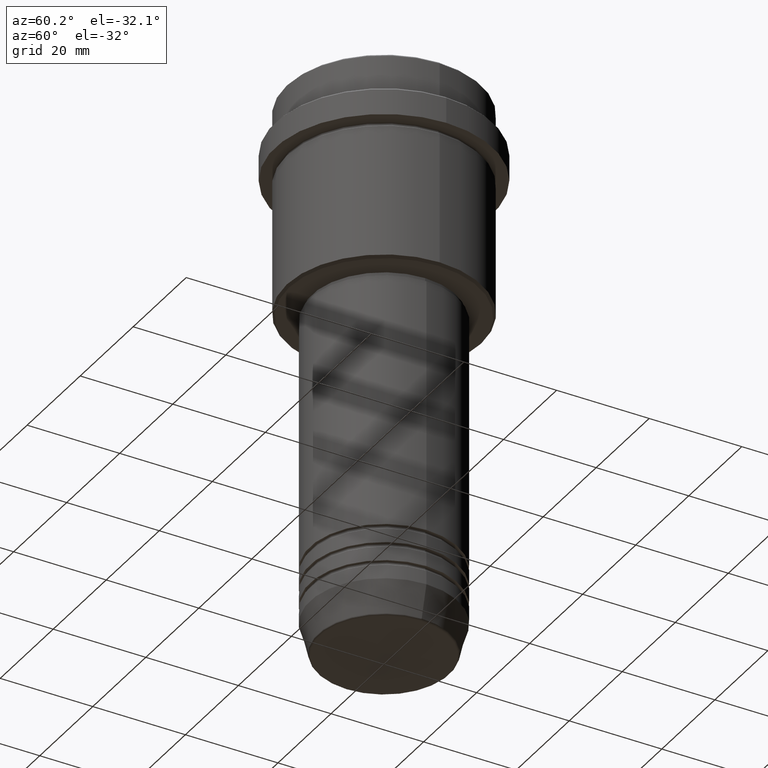
[diagram: clean part render]
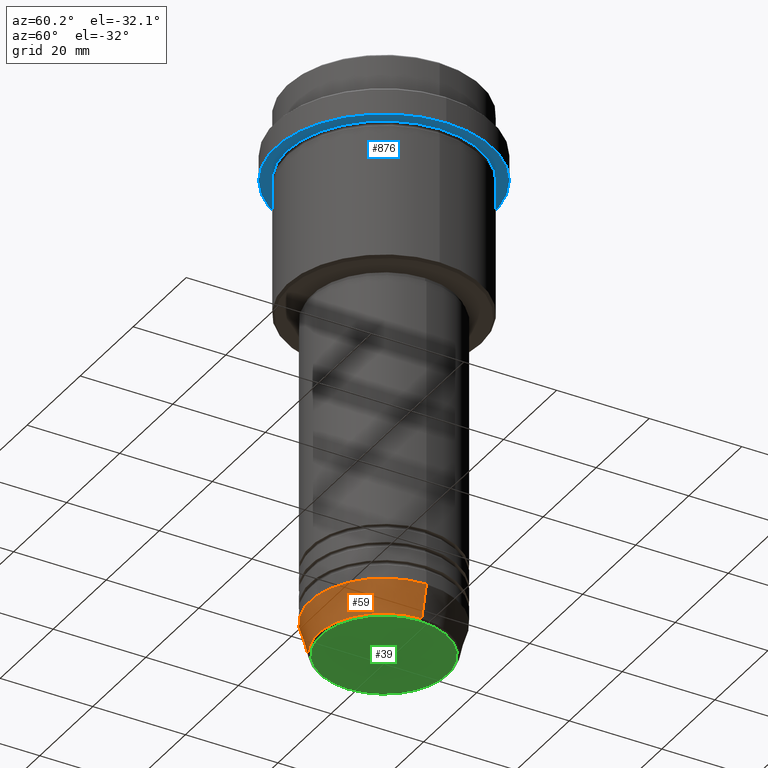
[diagram: same view with three faces highlighted in distinct colors, each labeled with its STEP entity id]
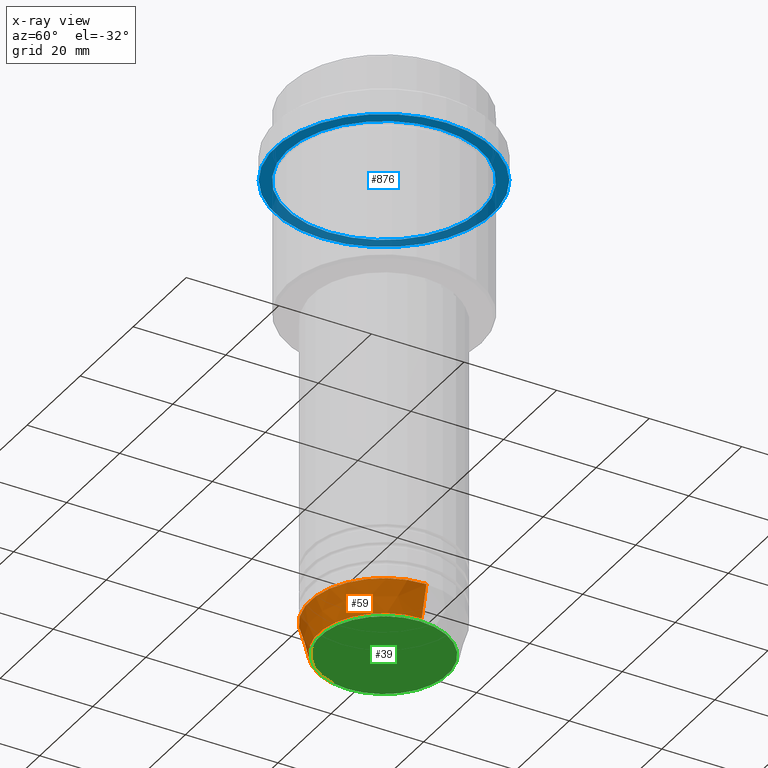
[diagram: x-ray of the same camera — body ghosted, the three highlighted faces saturated]
A machine part, auxiliary view with three faces highlighted in distinct colors.
The next image is the same camera in x-ray (body ghosted, the three faces saturated) — at least one of them is partly hidden behind the body in this view.
Their STEP definitions:

[orange] entity #59 — the highlighted conical surface has half-angle 15 deg.
#3 = DIRECTION ( 'NONE',  ( 1.000000000000000000, 0.000000000000000000, 0.000000000000000000 ) ) ;
#27 = LINE ( 'NONE', #429, #421 ) ;
#59 = ADVANCED_FACE ( 'NONE', ( #729 ), #132, .T. ) ;
#132 = CONICAL_SURFACE ( 'NONE', #182, 16.00000000000000000, 0.2617993877991500740 ) ;
#137 = AXIS2_PLACEMENT_3D ( 'NONE', #987, #1099, #526 ) ;
#147 = EDGE_LOOP ( 'NONE', ( #966, #191, #176, #568 ) ) ;
#176 = ORIENTED_EDGE ( 'NONE', *, *, #1382, .T. ) ;
#182 = AXIS2_PLACEMENT_3D ( 'NONE', #831, #723, #1057 ) ;
#191 = ORIENTED_EDGE ( 'NONE', *, *, #1052, .T. ) ;
#207 = CIRCLE ( 'NONE', #137, 16.00000000000000000 ) ;
#227 = AXIS2_PLACEMENT_3D ( 'NONE', #642, #1225, #3 ) ;
#258 = VERTEX_POINT ( 'NONE', #892 ) ;
#336 = DIRECTION ( 'NONE',  ( -0.2588190451025213501, 3.169619151431772337E-17, 0.9659258262890680902 ) ) ;
#410 = LINE ( 'NONE', #742, #1034 ) ;
#421 = VECTOR ( 'NONE', #336, 1000.000000000000000 ) ;
#425 = VERTEX_POINT ( 'NONE', #581 ) ;
#429 = CARTESIAN_POINT ( 'NONE',  ( -16.00000000000000000, 1.959434878635765131E-15, -112.9999999999999858 ) ) ;
#479 = VERTEX_POINT ( 'NONE', #835 ) ;
#526 = DIRECTION ( 'NONE',  ( 1.000000000000000000, 0.000000000000000000, 0.000000000000000000 ) ) ;
#568 = ORIENTED_EDGE ( 'NONE', *, *, #669, .F. ) ;
#581 = CARTESIAN_POINT ( 'NONE',  ( -16.00000000000000000, 1.959434878635765131E-15, -112.9999999999999858 ) ) ;
#624 = DIRECTION ( 'NONE',  ( 0.2588190451025213501, 0.000000000000000000, 0.9659258262890680902 ) ) ;
#642 = CARTESIAN_POINT ( 'NONE',  ( 0.000000000000000000, 0.000000000000000000, -119.6294095225512564 ) ) ;
#669 = EDGE_CURVE ( 'NONE', #425, #479, #207, .T. ) ;
#723 = DIRECTION ( 'NONE',  ( -0.000000000000000000, -0.000000000000000000, 1.000000000000000000 ) ) ;
#729 = FACE_OUTER_BOUND ( 'NONE', #147, .T. ) ;
#742 = CARTESIAN_POINT ( 'NONE',  ( 16.00000000000000000, 0.000000000000000000, -112.9999999999999858 ) ) ;
#831 = CARTESIAN_POINT ( 'NONE',  ( 0.000000000000000000, 0.000000000000000000, -112.9999999999999858 ) ) ;
#835 = CARTESIAN_POINT ( 'NONE',  ( 16.00000000000000000, 0.000000000000000000, -112.9999999999999858 ) ) ;
#892 = CARTESIAN_POINT ( 'NONE',  ( -14.22365507213718949, 1.850665122131323337E-15, -119.6294095225512564 ) ) ;
#928 = EDGE_CURVE ( 'NONE', #258, #425, #27, .T. ) ;
#966 = ORIENTED_EDGE ( 'NONE', *, *, #928, .F. ) ;
#987 = CARTESIAN_POINT ( 'NONE',  ( 0.000000000000000000, 0.000000000000000000, -112.9999999999999858 ) ) ;
#1034 = VECTOR ( 'NONE', #624, 1000.000000000000000 ) ;
#1052 = EDGE_CURVE ( 'NONE', #258, #1054, #1084, .T. ) ;
#1054 = VERTEX_POINT ( 'NONE', #1087 ) ;
#1057 = DIRECTION ( 'NONE',  ( 1.000000000000000000, 0.000000000000000000, 0.000000000000000000 ) ) ;
#1084 = CIRCLE ( 'NONE', #227, 14.22365507213718949 ) ;
#1087 = CARTESIAN_POINT ( 'NONE',  ( 14.22365507213718949, 0.000000000000000000, -119.6294095225512564 ) ) ;
#1099 = DIRECTION ( 'NONE',  ( -0.000000000000000000, -0.000000000000000000, 1.000000000000000000 ) ) ;
#1225 = DIRECTION ( 'NONE',  ( -0.000000000000000000, -0.000000000000000000, 1.000000000000000000 ) ) ;
#1382 = EDGE_CURVE ( 'NONE', #1054, #479, #410, .T. ) ;

[blue] entity #876 — the highlighted planar face has unit normal (0, 0, -1).
#13 = CARTESIAN_POINT ( 'NONE',  ( 0.000000000000000000, 0.000000000000000000, -15.00000000000000000 ) ) ;
#22 = VERTEX_POINT ( 'NONE', #593 ) ;
#64 = CARTESIAN_POINT ( 'NONE',  ( 0.000000000000000000, 23.50000000000000355, -15.00000000000000178 ) ) ;
#133 = DIRECTION ( 'NONE',  ( -1.000000000000000000, 0.000000000000000000, 0.000000000000000000 ) ) ;
#164 = CIRCLE ( 'NONE', #1245, 20.99999999999999289 ) ;
#181 = FACE_OUTER_BOUND ( 'NONE', #699, .T. ) ;
#199 = EDGE_CURVE ( 'NONE', #22, #1001, #657, .T. ) ;
#337 = CARTESIAN_POINT ( 'NONE',  ( 0.000000000000000000, 0.000000000000000000, -15.00000000000000000 ) ) ;
#372 = VERTEX_POINT ( 'NONE', #1374 ) ;
#491 = DIRECTION ( 'NONE',  ( 0.000000000000000000, 0.000000000000000000, -1.000000000000000000 ) ) ;
#528 = AXIS2_PLACEMENT_3D ( 'NONE', #13, #1317, #1096 ) ;
#545 = DIRECTION ( 'NONE',  ( 1.000000000000000000, 0.000000000000000000, 0.000000000000000000 ) ) ;
#593 = CARTESIAN_POINT ( 'NONE',  ( -23.50000000000000711, 2.877919977996281109E-15, -15.00000000000000000 ) ) ;
#595 = DIRECTION ( 'NONE',  ( -1.000000000000000000, 0.000000000000000000, -0.000000000000000000 ) ) ;
#599 = AXIS2_PLACEMENT_3D ( 'NONE', #64, #491, #595 ) ;
#638 = AXIS2_PLACEMENT_3D ( 'NONE', #842, #1290, #1156 ) ;
#657 = CIRCLE ( 'NONE', #1218, 23.50000000000000355 ) ;
#690 = ORIENTED_EDGE ( 'NONE', *, *, #199, .F. ) ;
#699 = EDGE_LOOP ( 'NONE', ( #1415, #690 ) ) ;
#755 = CARTESIAN_POINT ( 'NONE',  ( 0.000000000000000000, 0.000000000000000000, -15.00000000000000178 ) ) ;
#819 = EDGE_CURVE ( 'NONE', #1001, #22, #1395, .T. ) ;
#842 = CARTESIAN_POINT ( 'NONE',  ( 0.000000000000000000, 0.000000000000000000, -15.00000000000000178 ) ) ;
#876 = ADVANCED_FACE ( 'NONE', ( #1123, #181 ), #1141, .T. ) ;
#913 = EDGE_LOOP ( 'NONE', ( #1133, #935 ) ) ;
#935 = ORIENTED_EDGE ( 'NONE', *, *, #944, .T. ) ;
#944 = EDGE_CURVE ( 'NONE', #372, #1273, #1268, .T. ) ;
#1001 = VERTEX_POINT ( 'NONE', #1006 ) ;
#1006 = CARTESIAN_POINT ( 'NONE',  ( 23.50000000000000355, 0.000000000000000000, -15.00000000000000000 ) ) ;
#1094 = DIRECTION ( 'NONE',  ( -0.000000000000000000, -0.000000000000000000, 1.000000000000000000 ) ) ;
#1096 = DIRECTION ( 'NONE',  ( 1.000000000000000000, 0.000000000000000000, 0.000000000000000000 ) ) ;
#1123 = FACE_BOUND ( 'NONE', #913, .T. ) ;
#1133 = ORIENTED_EDGE ( 'NONE', *, *, #1153, .T. ) ;
#1141 = PLANE ( 'NONE',  #599 ) ;
#1153 = EDGE_CURVE ( 'NONE', #1273, #372, #164, .T. ) ;
#1156 = DIRECTION ( 'NONE',  ( -1.000000000000000000, 0.000000000000000000, 0.000000000000000000 ) ) ;
#1158 = CARTESIAN_POINT ( 'NONE',  ( -20.99999999999999289, 0.000000000000000000, -15.00000000000000178 ) ) ;
#1218 = AXIS2_PLACEMENT_3D ( 'NONE', #337, #1414, #545 ) ;
#1245 = AXIS2_PLACEMENT_3D ( 'NONE', #755, #1094, #133 ) ;
#1268 = CIRCLE ( 'NONE', #638, 20.99999999999999289 ) ;
#1273 = VERTEX_POINT ( 'NONE', #1158 ) ;
#1290 = DIRECTION ( 'NONE',  ( -0.000000000000000000, -0.000000000000000000, 1.000000000000000000 ) ) ;
#1317 = DIRECTION ( 'NONE',  ( -0.000000000000000000, -0.000000000000000000, 1.000000000000000000 ) ) ;
#1374 = CARTESIAN_POINT ( 'NONE',  ( 20.99999999999999289, 2.571758278209440872E-15, -15.00000000000000178 ) ) ;
#1395 = CIRCLE ( 'NONE', #528, 23.50000000000000355 ) ;
#1414 = DIRECTION ( 'NONE',  ( -0.000000000000000000, -0.000000000000000000, 1.000000000000000000 ) ) ;
#1415 = ORIENTED_EDGE ( 'NONE', *, *, #819, .F. ) ;

[green] entity #39 — the highlighted planar face has unit normal (0, -0, 1).
#39 = ADVANCED_FACE ( 'NONE', ( #1283 ), #736, .F. ) ;
#50 = VERTEX_POINT ( 'NONE', #502 ) ;
#183 = AXIS2_PLACEMENT_3D ( 'NONE', #1010, #1114, #1334 ) ;
#187 = DIRECTION ( 'NONE',  ( 0.000000000000000000, 0.000000000000000000, -1.000000000000000000 ) ) ;
#288 = ORIENTED_EDGE ( 'NONE', *, *, #1278, .T. ) ;
#363 = DIRECTION ( 'NONE',  ( 1.000000000000000000, 0.000000000000000000, 0.000000000000000000 ) ) ;
#428 = EDGE_CURVE ( 'NONE', #1310, #50, #806, .T. ) ;
#477 = CARTESIAN_POINT ( 'NONE',  ( -13.74069215899265473, 1.712322416342415591E-15, -120.0000000000000000 ) ) ;
#498 = EDGE_LOOP ( 'NONE', ( #288, #649 ) ) ;
#502 = CARTESIAN_POINT ( 'NONE',  ( 13.74069215899265473, 0.000000000000000000, -120.0000000000000000 ) ) ;
#649 = ORIENTED_EDGE ( 'NONE', *, *, #428, .T. ) ;
#736 = PLANE ( 'NONE',  #925 ) ;
#752 = CIRCLE ( 'NONE', #1187, 13.74069215899265473 ) ;
#801 = CARTESIAN_POINT ( 'NONE',  ( 0.000000000000000000, 0.000000000000000000, -120.0000000000000000 ) ) ;
#806 = CIRCLE ( 'NONE', #183, 13.74069215899265473 ) ;
#925 = AXIS2_PLACEMENT_3D ( 'NONE', #1173, #1384, #1070 ) ;
#1010 = CARTESIAN_POINT ( 'NONE',  ( 0.000000000000000000, 0.000000000000000000, -120.0000000000000000 ) ) ;
#1070 = DIRECTION ( 'NONE',  ( 1.000000000000000000, 0.000000000000000000, 0.000000000000000000 ) ) ;
#1114 = DIRECTION ( 'NONE',  ( 0.000000000000000000, 0.000000000000000000, -1.000000000000000000 ) ) ;
#1173 = CARTESIAN_POINT ( 'NONE',  ( 0.000000000000000000, 0.000000000000000000, -120.0000000000000000 ) ) ;
#1187 = AXIS2_PLACEMENT_3D ( 'NONE', #801, #187, #363 ) ;
#1278 = EDGE_CURVE ( 'NONE', #50, #1310, #752, .T. ) ;
#1283 = FACE_OUTER_BOUND ( 'NONE', #498, .T. ) ;
#1310 = VERTEX_POINT ( 'NONE', #477 ) ;
#1334 = DIRECTION ( 'NONE',  ( 1.000000000000000000, 0.000000000000000000, 0.000000000000000000 ) ) ;
#1384 = DIRECTION ( 'NONE',  ( 0.000000000000000000, -0.000000000000000000, 1.000000000000000000 ) ) ;